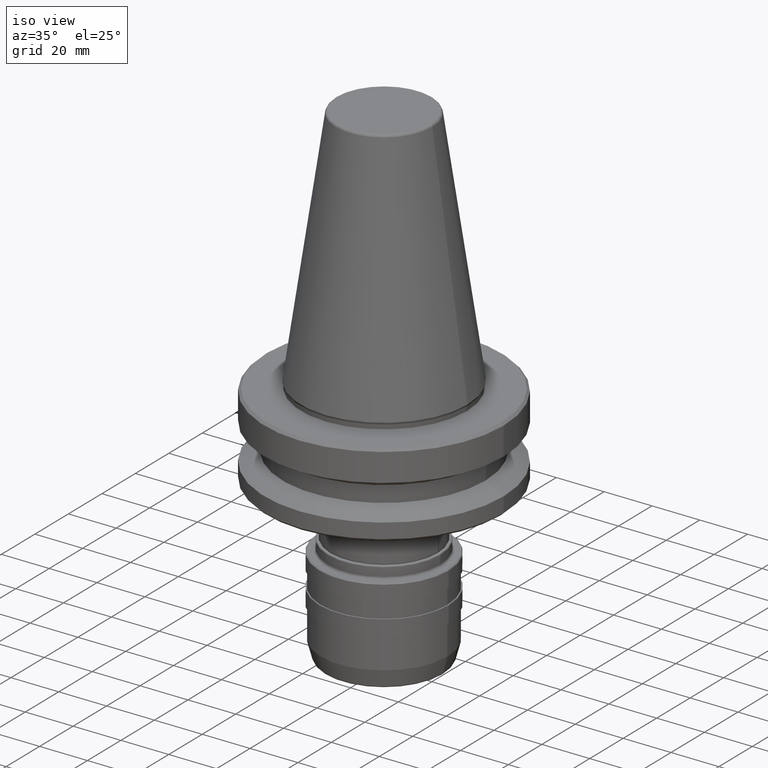
[diagram: clean part render]
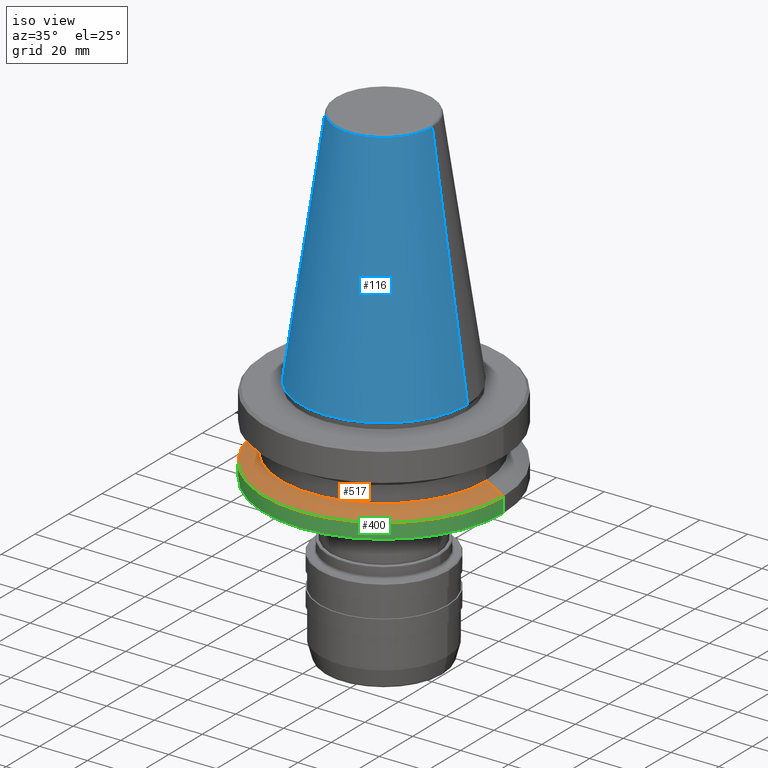
[diagram: same view with three faces highlighted in distinct colors, each labeled with its STEP entity id]
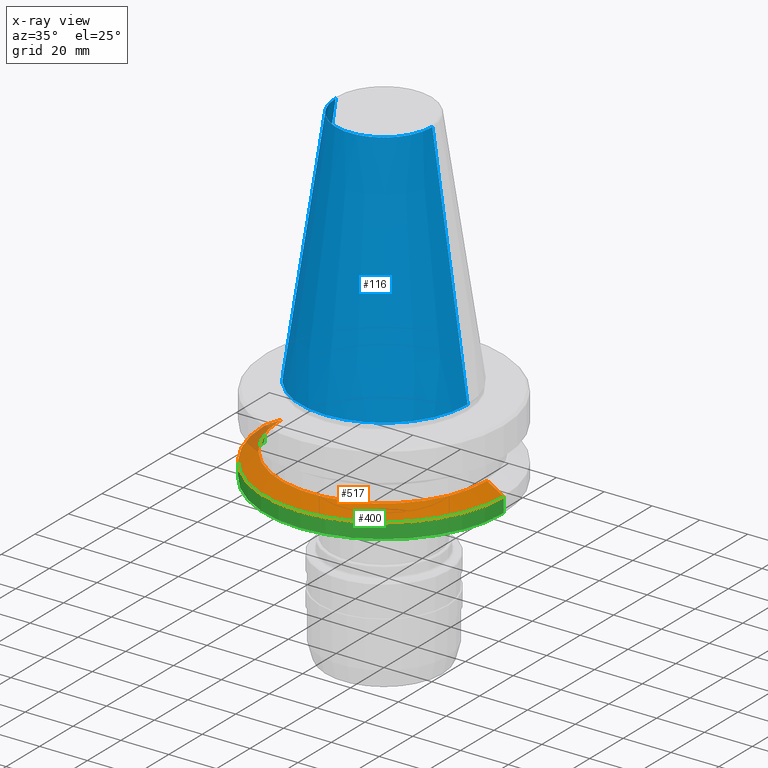
[diagram: x-ray of the same camera — body ghosted, the three highlighted faces saturated]
A machine part, iso view with three faces highlighted in distinct colors.
The next image is the same camera in x-ray (body ghosted, the three faces saturated) — at least one of them is partly hidden behind the body in this view.
Their STEP definitions:

[orange] entity #517 — the highlighted conical surface has half-angle 60 deg.
#52 = DIRECTION ( 'NONE',  ( -0.0000000000000000000, -0.0000000000000000000, 1.000000000000000000 ) ) ;
#63 = EDGE_CURVE ( 'NONE', #811, #536, #378, .T. ) ;
#68 = CARTESIAN_POINT ( 'NONE',  ( 50.00000000000004300, 0.0000000000000000000, -30.69977999677497800 ) ) ;
#108 = CARTESIAN_POINT ( 'NONE',  ( 0.0000000000000000000, 0.0000000000000000000, -30.69977999677497800 ) ) ;
#271 = ORIENTED_EDGE ( 'NONE', *, *, #1424, .T. ) ;
#378 = CIRCLE ( 'NONE', #550, 43.07217782648952900 ) ;
#386 = ORIENTED_EDGE ( 'NONE', *, *, #1269, .T. ) ;
#404 = AXIS2_PLACEMENT_3D ( 'NONE', #108, #590, #637 ) ;
#484 = DIRECTION ( 'NONE',  ( 1.000000000000000000, 0.0000000000000000000, 0.0000000000000000000 ) ) ;
#493 = EDGE_CURVE ( 'NONE', #536, #1394, #1010, .T. ) ;
#517 = ADVANCED_FACE ( 'NONE', ( #1088 ), #1654, .T. ) ;
#536 = VERTEX_POINT ( 'NONE', #1169 ) ;
#550 = AXIS2_PLACEMENT_3D ( 'NONE', #941, #52, #484 ) ;
#590 = DIRECTION ( 'NONE',  ( 0.0000000000000000000, 0.0000000000000000000, -1.000000000000000000 ) ) ;
#637 = DIRECTION ( 'NONE',  ( -1.000000000000000000, 0.0000000000000000000, 0.0000000000000000000 ) ) ;
#699 = CARTESIAN_POINT ( 'NONE',  ( 0.0000000000000000000, 0.0000000000000000000, -30.69977999677497800 ) ) ;
#715 = DIRECTION ( 'NONE',  ( 0.8660254037844392600, 1.060575238724907700E-016, -0.4999999999999989500 ) ) ;
#721 = CARTESIAN_POINT ( 'NONE',  ( -43.07217782648952900, 0.0000000000000000000, -26.70000000000083400 ) ) ;
#727 = CARTESIAN_POINT ( 'NONE',  ( -50.00000000000004300, 6.123233995736771600E-015, -30.69977999677497800 ) ) ;
#811 = VERTEX_POINT ( 'NONE', #721 ) ;
#830 = DIRECTION ( 'NONE',  ( 1.000000000000000000, 0.0000000000000000000, 0.0000000000000000000 ) ) ;
#941 = CARTESIAN_POINT ( 'NONE',  ( 0.0000000000000000000, 0.0000000000000000000, -26.70000000000083400 ) ) ;
#942 = VERTEX_POINT ( 'NONE', #727 ) ;
#1010 = LINE ( 'NONE', #1468, #1054 ) ;
#1054 = VECTOR ( 'NONE', #715, 1000.000000000000000 ) ;
#1073 = VECTOR ( 'NONE', #1302, 1000.000000000000000 ) ;
#1088 = FACE_OUTER_BOUND ( 'NONE', #1236, .T. ) ;
#1109 = LINE ( 'NONE', #1571, #1073 ) ;
#1169 = CARTESIAN_POINT ( 'NONE',  ( 43.07217782648952900, 5.699027233244186100E-015, -26.70000000000083400 ) ) ;
#1222 = ORIENTED_EDGE ( 'NONE', *, *, #63, .F. ) ;
#1236 = EDGE_LOOP ( 'NONE', ( #1430, #1222, #386, #271 ) ) ;
#1252 = AXIS2_PLACEMENT_3D ( 'NONE', #699, #1610, #830 ) ;
#1269 = EDGE_CURVE ( 'NONE', #811, #942, #1109, .T. ) ;
#1302 = DIRECTION ( 'NONE',  ( -0.8660254037844392600, 0.0000000000000000000, -0.4999999999999989500 ) ) ;
#1394 = VERTEX_POINT ( 'NONE', #68 ) ;
#1424 = EDGE_CURVE ( 'NONE', #942, #1394, #1575, .T. ) ;
#1430 = ORIENTED_EDGE ( 'NONE', *, *, #493, .F. ) ;
#1468 = CARTESIAN_POINT ( 'NONE',  ( 50.00000000000004300, 6.123233995736771600E-015, -30.69977999677497800 ) ) ;
#1571 = CARTESIAN_POINT ( 'NONE',  ( -50.00000000000004300, 0.0000000000000000000, -30.69977999677497800 ) ) ;
#1575 = CIRCLE ( 'NONE', #1252, 50.00000000000004300 ) ;
#1610 = DIRECTION ( 'NONE',  ( -0.0000000000000000000, -0.0000000000000000000, 1.000000000000000000 ) ) ;
#1654 = CONICAL_SURFACE ( 'NONE', #404, 50.00000000000004300, 1.047197551196599000 ) ;

[blue] entity #116 — the highlighted conical surface has half-angle 8.297 deg.
#11 = VERTEX_POINT ( 'NONE', #363 ) ;
#70 = DIRECTION ( 'NONE',  ( 0.1443082234293919800, 1.767266039134459600E-017, -0.9895327870518757500 ) ) ;
#74 = EDGE_LOOP ( 'NONE', ( #1478, #128, #341, #296 ) ) ;
#116 = ADVANCED_FACE ( 'NONE', ( #1639 ), #642, .T. ) ;
#128 = ORIENTED_EDGE ( 'NONE', *, *, #1600, .F. ) ;
#153 = CARTESIAN_POINT ( 'NONE',  ( 20.20381645192137700, 2.474253914840614600E-015, 100.9443082234282700 ) ) ;
#154 = VERTEX_POINT ( 'NONE', #1284 ) ;
#172 = VECTOR ( 'NONE', #658, 999.9999999999998900 ) ;
#245 = DIRECTION ( 'NONE',  ( 0.0000000000000000000, 0.0000000000000000000, -1.000000000000000000 ) ) ;
#296 = ORIENTED_EDGE ( 'NONE', *, *, #1365, .T. ) ;
#311 = DIRECTION ( 'NONE',  ( -0.0000000000000000000, -0.0000000000000000000, 1.000000000000000000 ) ) ;
#341 = ORIENTED_EDGE ( 'NONE', *, *, #472, .T. ) ;
#363 = CARTESIAN_POINT ( 'NONE',  ( 34.92499999999942900, 0.0000000000000000000, 0.0000000000000000000 ) ) ;
#369 = CIRCLE ( 'NONE', #479, 34.92499999999942900 ) ;
#451 = LINE ( 'NONE', #1212, #172 ) ;
#467 = CARTESIAN_POINT ( 'NONE',  ( -34.92499999999942900, 4.277078946022061500E-015, 0.0000000000000000000 ) ) ;
#472 = EDGE_CURVE ( 'NONE', #789, #913, #451, .T. ) ;
#479 = AXIS2_PLACEMENT_3D ( 'NONE', #1075, #311, #1201 ) ;
#635 = CARTESIAN_POINT ( 'NONE',  ( 0.0000000000000000000, 0.0000000000000000000, 100.9443082234282700 ) ) ;
#642 = CONICAL_SURFACE ( 'NONE', #990, 20.20381645192137700, 0.1448138426689068200 ) ;
#658 = DIRECTION ( 'NONE',  ( -0.1443082234293919800, 0.0000000000000000000, -0.9895327870518757500 ) ) ;
#683 = LINE ( 'NONE', #153, #1149 ) ;
#772 = DIRECTION ( 'NONE',  ( 1.000000000000000000, 0.0000000000000000000, 0.0000000000000000000 ) ) ;
#784 = CARTESIAN_POINT ( 'NONE',  ( -20.20381645192137700, 0.0000000000000000000, 100.9443082234282700 ) ) ;
#789 = VERTEX_POINT ( 'NONE', #784 ) ;
#907 = EDGE_CURVE ( 'NONE', #154, #11, #683, .T. ) ;
#913 = VERTEX_POINT ( 'NONE', #467 ) ;
#990 = AXIS2_PLACEMENT_3D ( 'NONE', #1096, #245, #1162 ) ;
#1075 = CARTESIAN_POINT ( 'NONE',  ( 0.0000000000000000000, 0.0000000000000000000, 0.0000000000000000000 ) ) ;
#1096 = CARTESIAN_POINT ( 'NONE',  ( 0.0000000000000000000, 0.0000000000000000000, 100.9443082234282700 ) ) ;
#1149 = VECTOR ( 'NONE', #70, 999.9999999999998900 ) ;
#1162 = DIRECTION ( 'NONE',  ( -1.000000000000000000, 0.0000000000000000000, 0.0000000000000000000 ) ) ;
#1201 = DIRECTION ( 'NONE',  ( 1.000000000000000000, 0.0000000000000000000, 0.0000000000000000000 ) ) ;
#1212 = CARTESIAN_POINT ( 'NONE',  ( -20.20381645192137700, 0.0000000000000000000, 100.9443082234282700 ) ) ;
#1223 = AXIS2_PLACEMENT_3D ( 'NONE', #635, #1547, #772 ) ;
#1279 = CIRCLE ( 'NONE', #1223, 20.20381645192137700 ) ;
#1284 = CARTESIAN_POINT ( 'NONE',  ( 20.20381645192137700, 3.375666430431338200E-015, 100.9443082234282700 ) ) ;
#1365 = EDGE_CURVE ( 'NONE', #913, #11, #369, .T. ) ;
#1478 = ORIENTED_EDGE ( 'NONE', *, *, #907, .F. ) ;
#1547 = DIRECTION ( 'NONE',  ( -0.0000000000000000000, -0.0000000000000000000, 1.000000000000000000 ) ) ;
#1600 = EDGE_CURVE ( 'NONE', #789, #154, #1279, .T. ) ;
#1639 = FACE_OUTER_BOUND ( 'NONE', #74, .T. ) ;

[green] entity #400 — the highlighted cylindrical surface (partial cylindrical patch) has radius 50 mm, axis along (-0, -0, 1).
#47 = EDGE_LOOP ( 'NONE', ( #370, #1590, #761, #641 ) ) ;
#68 = CARTESIAN_POINT ( 'NONE',  ( 50.00000000000004300, 0.0000000000000000000, -30.69977999677497800 ) ) ;
#99 = CARTESIAN_POINT ( 'NONE',  ( -50.00000000000004300, 6.123233995736771600E-015, -37.00000000000169800 ) ) ;
#175 = VECTOR ( 'NONE', #1482, 1000.000000000000000 ) ;
#291 = CARTESIAN_POINT ( 'NONE',  ( 50.00000000000004300, 0.0000000000000000000, -37.00000000000169800 ) ) ;
#340 = VERTEX_POINT ( 'NONE', #99 ) ;
#353 = AXIS2_PLACEMENT_3D ( 'NONE', #1444, #1304, #859 ) ;
#370 = ORIENTED_EDGE ( 'NONE', *, *, #1477, .F. ) ;
#400 = ADVANCED_FACE ( 'NONE', ( #836 ), #529, .T. ) ;
#494 = LINE ( 'NONE', #1479, #175 ) ;
#516 = DIRECTION ( 'NONE',  ( -0.0000000000000000000, -0.0000000000000000000, 1.000000000000000000 ) ) ;
#529 = CYLINDRICAL_SURFACE ( 'NONE', #353, 50.00000000000004300 ) ;
#535 = CARTESIAN_POINT ( 'NONE',  ( 50.00000000000004300, 0.0000000000000000000, 129.1522298295560100 ) ) ;
#579 = CIRCLE ( 'NONE', #1515, 50.00000000000004300 ) ;
#591 = VECTOR ( 'NONE', #516, 1000.000000000000000 ) ;
#641 = ORIENTED_EDGE ( 'NONE', *, *, #1424, .F. ) ;
#699 = CARTESIAN_POINT ( 'NONE',  ( 0.0000000000000000000, 0.0000000000000000000, -30.69977999677497800 ) ) ;
#727 = CARTESIAN_POINT ( 'NONE',  ( -50.00000000000004300, 6.123233995736771600E-015, -30.69977999677497800 ) ) ;
#729 = EDGE_CURVE ( 'NONE', #1273, #1394, #899, .T. ) ;
#761 = ORIENTED_EDGE ( 'NONE', *, *, #729, .T. ) ;
#830 = DIRECTION ( 'NONE',  ( 1.000000000000000000, 0.0000000000000000000, 0.0000000000000000000 ) ) ;
#836 = FACE_OUTER_BOUND ( 'NONE', #47, .T. ) ;
#859 = DIRECTION ( 'NONE',  ( 1.000000000000000000, 0.0000000000000000000, 0.0000000000000000000 ) ) ;
#885 = EDGE_CURVE ( 'NONE', #340, #1273, #579, .T. ) ;
#899 = LINE ( 'NONE', #535, #591 ) ;
#942 = VERTEX_POINT ( 'NONE', #727 ) ;
#1252 = AXIS2_PLACEMENT_3D ( 'NONE', #699, #1610, #830 ) ;
#1273 = VERTEX_POINT ( 'NONE', #291 ) ;
#1304 = DIRECTION ( 'NONE',  ( -0.0000000000000000000, -0.0000000000000000000, 1.000000000000000000 ) ) ;
#1368 = DIRECTION ( 'NONE',  ( 1.000000000000000000, 0.0000000000000000000, 0.0000000000000000000 ) ) ;
#1372 = DIRECTION ( 'NONE',  ( -0.0000000000000000000, -0.0000000000000000000, 1.000000000000000000 ) ) ;
#1394 = VERTEX_POINT ( 'NONE', #68 ) ;
#1424 = EDGE_CURVE ( 'NONE', #942, #1394, #1575, .T. ) ;
#1444 = CARTESIAN_POINT ( 'NONE',  ( 0.0000000000000000000, 0.0000000000000000000, 129.1522298295560100 ) ) ;
#1477 = EDGE_CURVE ( 'NONE', #340, #942, #494, .T. ) ;
#1479 = CARTESIAN_POINT ( 'NONE',  ( -50.00000000000004300, 6.123233995736771600E-015, 129.1522298295560100 ) ) ;
#1482 = DIRECTION ( 'NONE',  ( -0.0000000000000000000, -0.0000000000000000000, 1.000000000000000000 ) ) ;
#1500 = CARTESIAN_POINT ( 'NONE',  ( 0.0000000000000000000, 0.0000000000000000000, -37.00000000000169800 ) ) ;
#1515 = AXIS2_PLACEMENT_3D ( 'NONE', #1500, #1372, #1368 ) ;
#1575 = CIRCLE ( 'NONE', #1252, 50.00000000000004300 ) ;
#1590 = ORIENTED_EDGE ( 'NONE', *, *, #885, .T. ) ;
#1610 = DIRECTION ( 'NONE',  ( -0.0000000000000000000, -0.0000000000000000000, 1.000000000000000000 ) ) ;